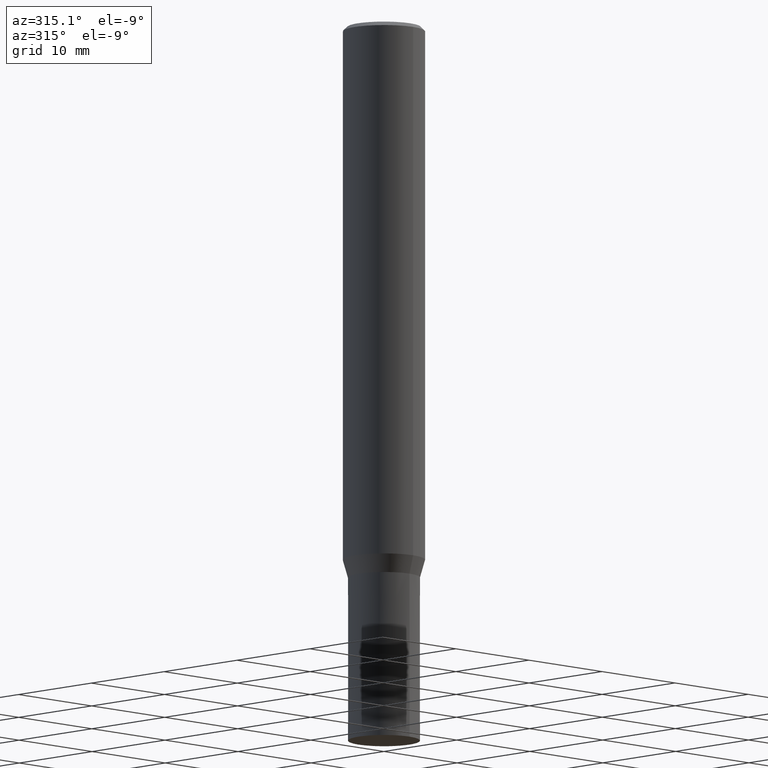
[diagram: clean part render]
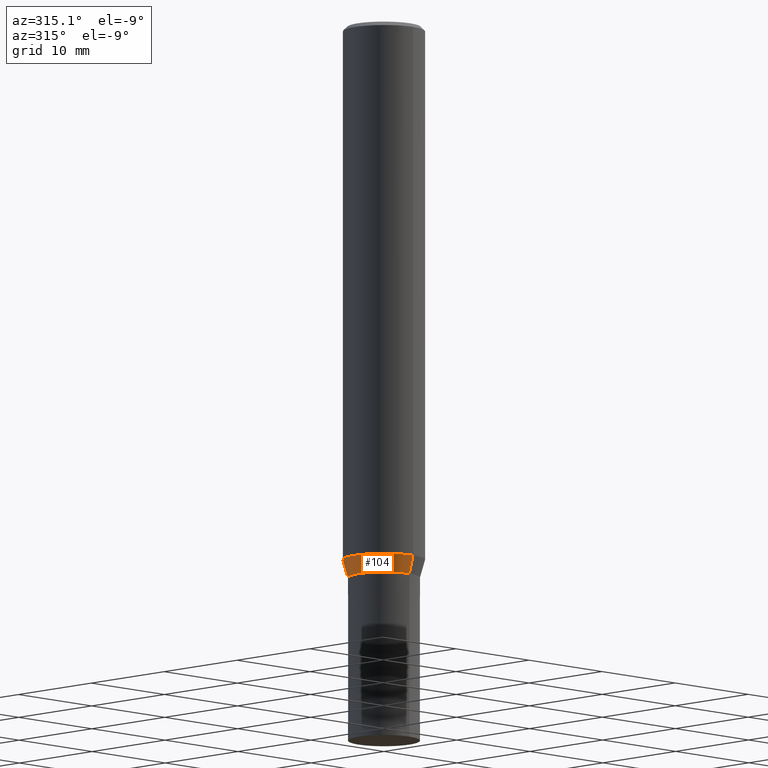
[diagram: same view with one face highlighted and labeled with its STEP entity id]
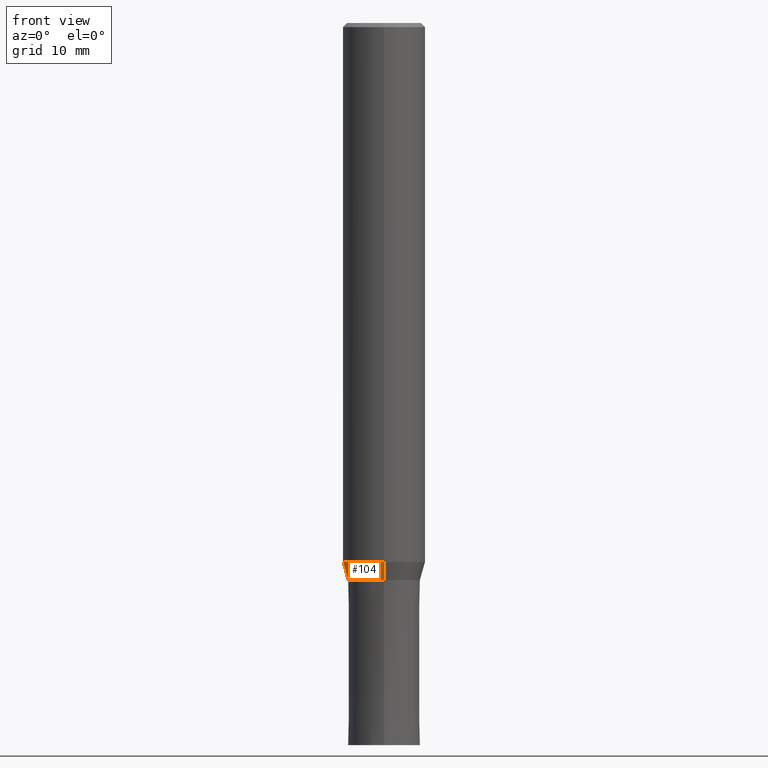
[diagram: same view with one face highlighted and labeled with its STEP entity id]
A machine part, auxiliary view. The second image highlights one B-rep face of the part: STEP entity #104.
A second angle (front view) of the same face is appended — the face is thin or edge-on in the first view.
In plain terms, the highlighted conical surface has half-angle 15.997 deg.
Its self-contained STEP definition (entity closure, byte-faithful):
#84=VERTEX_POINT('',#205);
#94=EDGE_CURVE('',#134,#140,#216,.T.);
#104=ADVANCED_FACE('',(#229),#230,.T.);
#124=EDGE_CURVE('',#84,#130,#251,.T.);
#128=EDGE_CURVE('',#130,#140,#255,.T.);
#130=VERTEX_POINT('',#257);
#134=VERTEX_POINT('',#262);
#136=EDGE_CURVE('',#134,#84,#264,.T.);
#140=VERTEX_POINT('',#268);
#205=CARTESIAN_POINT('',(4.89836418497182E-016,-3.99995,-52.256));
#216=CIRCLE('',#346,3.49995);
#229=FACE_OUTER_BOUND('',#361,.T.);
#230=CONICAL_SURFACE('',#362,3.74995,0.279208199033747);
#251=CIRCLE('',#392,3.99995);
#255=LINE('',#399,#400);
#257=CARTESIAN_POINT('',(0.0,3.99995,-52.256));
#262=CARTESIAN_POINT('',(4.28606100806063E-016,-3.49995,-54.0));
#264=LINE('',#410,#411);
#268=CARTESIAN_POINT('',(0.0,3.49995,-54.0));
#346=AXIS2_PLACEMENT_3D('',#490,#491,#492);
#361=EDGE_LOOP('',(#516,#517,#518,#519));
#362=AXIS2_PLACEMENT_3D('',#520,#521,#522);
#392=AXIS2_PLACEMENT_3D('',#543,#544,#545);
#399=CARTESIAN_POINT('',(-4.59221259651622E-016,3.74995,-53.128));
#400=VECTOR('',#547,1.0);
#410=CARTESIAN_POINT('',(4.59221259651622E-016,-3.74995,-53.128));
#411=VECTOR('',#556,1.0);
#490=CARTESIAN_POINT('',(0.0,0.0,-54.0));
#491=DIRECTION('',(0.0,0.0,-1.0));
#492=DIRECTION('',(0.0,1.0,0.0));
#516=ORIENTED_EDGE('',*,*,#128,.T.);
#517=ORIENTED_EDGE('',*,*,#94,.F.);
#518=ORIENTED_EDGE('',*,*,#136,.T.);
#519=ORIENTED_EDGE('',*,*,#124,.T.);
#520=CARTESIAN_POINT('',(0.0,0.0,-53.128));
#521=DIRECTION('',(-0.0,-0.0,1.0));
#522=DIRECTION('',(0.0,1.0,0.0));
#543=CARTESIAN_POINT('',(0.0,0.0,-52.256));
#544=DIRECTION('',(0.0,0.0,-1.0));
#545=DIRECTION('',(0.0,1.0,0.0));
#547=DIRECTION('',(3.37494895041124E-017,-0.275594597388538,-0.961273955691222));
#556=DIRECTION('',(3.37494895041124E-017,-0.275594597388538,0.961273955691222));